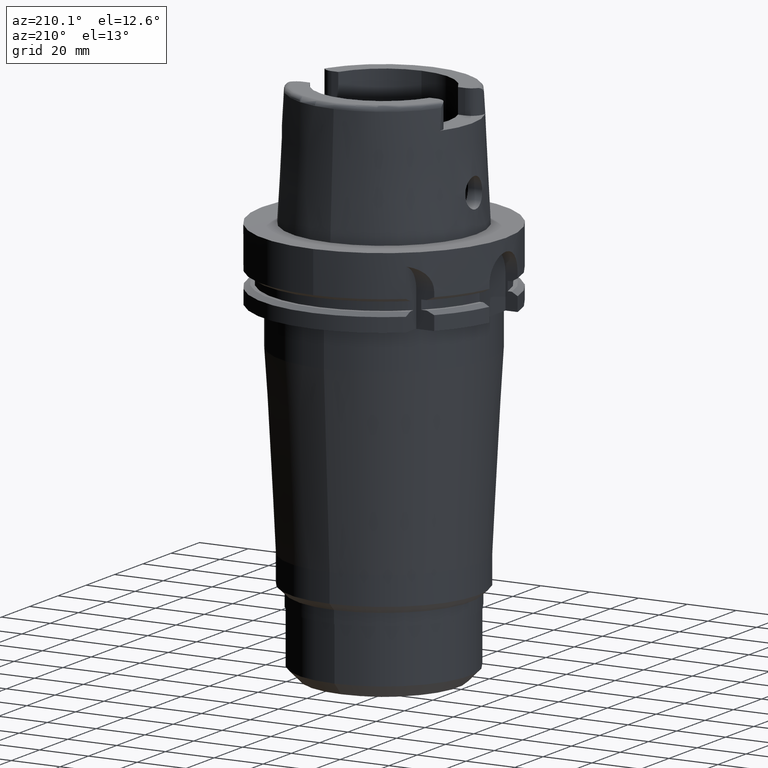
[diagram: clean part render]
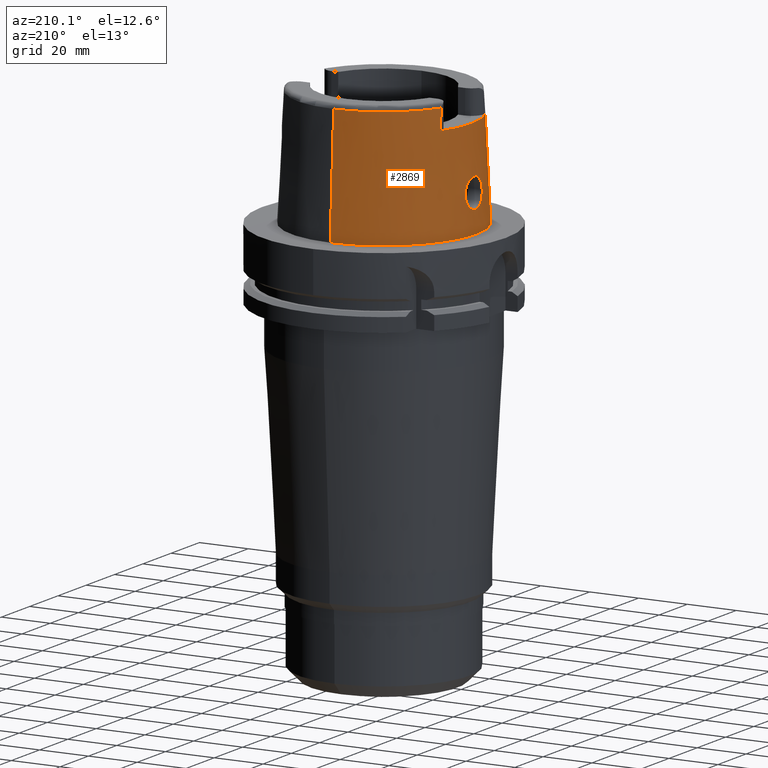
[diagram: same view with one face highlighted and labeled with its STEP entity id]
A machine part, auxiliary view. The second image highlights one B-rep face of the part: STEP entity #2869.
In plain terms, the highlighted conical surface has half-angle 2.862 deg.
Its self-contained STEP definition (entity closure, byte-faithful):
#130=CARTESIAN_POINT('',(0.E0,0.E0,4.E1));
#131=DIRECTION('',(0.E0,0.E0,-1.E0));
#132=DIRECTION('',(-8.958345712660E-1,-4.443876921391E-1,0.E0));
#133=AXIS2_PLACEMENT_3D('',#130,#131,#132);
#221=CARTESIAN_POINT('',(-3.224999491821E1,-1.506448480606E1,4.809973264154E1));
#281=CARTESIAN_POINT('',(0.E0,0.E0,4.809987853799E1));
#282=DIRECTION('',(0.E0,0.E0,-1.E0));
#283=DIRECTION('',(0.E0,-1.E0,0.E0));
#284=AXIS2_PLACEMENT_3D('',#281,#282,#283);
#289=CARTESIAN_POINT('',(-3.224999876012E1,-1.599794043148E1,4.E1));
#290=CARTESIAN_POINT('',(-3.224999876012E1,-1.589618560063E1,4.090434232027E1));
#291=CARTESIAN_POINT('',(-3.224999990104E1,-1.569149929485E1,4.271014757130E1));
#292=CARTESIAN_POINT('',(-3.225000220619E1,-1.538028254446E1,4.541006270317E1));
#293=CARTESIAN_POINT('',(-3.224999491821E1,-1.517027181547E1,4.720433969843E1));
#294=CARTESIAN_POINT('',(-3.224999491821E1,-1.506448480606E1,4.809973264154E1));
#299=DIRECTION('',(5.154182075151E-5,-4.993927430816E-2,-9.987522546783E-1));
#300=VECTOR('',#299,4.815996991514E1);
#301=CARTESIAN_POINT('',(-2.482252536761E-3,-3.559494263425E1,
4.809987853799E1));
#302=LINE('',#301,#300);
#306=CARTESIAN_POINT('',(-3.225000136841E1,1.506443228469E1,4.809991919862E1));
#307=CARTESIAN_POINT('',(-3.225000136841E1,1.517024628777E1,4.720430024104E1));
#308=CARTESIAN_POINT('',(-3.225000007421E1,1.538032523712E1,4.541024583530E1));
#309=CARTESIAN_POINT('',(-3.224999768767E1,1.569154926880E1,4.271027467023E1));
#310=CARTESIAN_POINT('',(-3.225000534596E1,1.589614940559E1,4.090439636549E1));
#311=CARTESIAN_POINT('',(-3.225000534596E1,1.599791057085E1,4.E1));
#316=CARTESIAN_POINT('',(-3.755000165825E1,1.432651546991E-13,9.E0));
#317=CARTESIAN_POINT('',(-3.755000165825E1,-5.185560787297E-1,9.E0));
#318=CARTESIAN_POINT('',(-3.752119038131E1,-1.556716984277E0,9.135734722660E0));
#319=CARTESIAN_POINT('',(-3.740130554104E1,-3.006802699928E0,9.729109611433E0));
#320=CARTESIAN_POINT('',(-3.722726318975E1,-4.270787324623E0,1.068748216955E1));
#321=CARTESIAN_POINT('',(-3.703605345601E1,-5.245410217816E0,1.194520323925E1));
#322=CARTESIAN_POINT('',(-3.686625967758E1,-5.862506743130E0,1.342477736654E1));
#323=CARTESIAN_POINT('',(-3.675188493319E1,-6.068957740843E0,1.500492021008E1));
#324=CARTESIAN_POINT('',(-3.670699294937E1,-5.861659041690E0,1.657084310323E1));
#325=CARTESIAN_POINT('',(-3.672675900459E1,-5.257535553184E0,1.802994044466E1));
#326=CARTESIAN_POINT('',(-3.679087786362E1,-4.302010649062E0,1.928009624327E1));
#327=CARTESIAN_POINT('',(-3.687048843870E1,-3.045271169490E0,2.025039439542E1));
#328=CARTESIAN_POINT('',(-3.693403423248E1,-1.575202321732E0,2.086150979571E1));
#329=CARTESIAN_POINT('',(-3.694998175923E1,-5.250091625389E-1,2.1E1));
#330=CARTESIAN_POINT('',(-3.694998175923E1,0.E0,2.1E1));
#335=CARTESIAN_POINT('',(-3.694998175923E1,0.E0,2.1E1));
#336=CARTESIAN_POINT('',(-3.694998175923E1,5.232795194754E-1,2.1E1));
#337=CARTESIAN_POINT('',(-3.693412453033E1,1.570860915333E0,2.086225710789E1));
#338=CARTESIAN_POINT('',(-3.687089197851E1,3.037978777102E0,2.025451179144E1));
#339=CARTESIAN_POINT('',(-3.679106406143E1,4.299509589152E0,1.928373303358E1));
#340=CARTESIAN_POINT('',(-3.672648539176E1,5.261375400361E0,1.802478386033E1));
#341=CARTESIAN_POINT('',(-3.670709909781E1,5.863702681450E0,1.656194075933E1));
#342=CARTESIAN_POINT('',(-3.675206984369E1,6.067618997678E0,1.500575580849E1));
#343=CARTESIAN_POINT('',(-3.686472387378E1,5.865809689032E0,1.344398412852E1));
#344=CARTESIAN_POINT('',(-3.703183517815E1,5.262900383072E0,1.197739891732E1));
#345=CARTESIAN_POINT('',(-3.722263417644E1,4.298757024079E0,1.071458147677E1));
#346=CARTESIAN_POINT('',(-3.739912191669E1,3.029436577791E0,9.739991066842E0));
#347=CARTESIAN_POINT('',(-3.752122404034E1,1.560909655761E0,9.135510008541E0));
#348=CARTESIAN_POINT('',(-3.755000165825E1,5.189906360043E-1,9.E0));
#349=CARTESIAN_POINT('',(-3.755000165825E1,1.432651546991E-13,9.E0));
#364=DIRECTION('',(-5.154182075159E-5,4.993927430816E-2,-9.987522546783E-1));
#365=VECTOR('',#364,4.815996991514E1);
#366=CARTESIAN_POINT('',(2.482252536765E-3,3.559494263425E1,4.809987853799E1));
#367=LINE('',#366,#365);
#2087=CARTESIAN_POINT('',(0.E0,0.E0,1.023181539495E-12));
#2088=DIRECTION('',(0.E0,0.E0,1.E0));
#2089=DIRECTION('',(0.E0,1.E0,0.E0));
#2090=AXIS2_PLACEMENT_3D('',#2087,#2088,#2089);
#2278=CARTESIAN_POINT('',(-3.225000136841E1,1.506443228469E1,4.809991919862E1));
#2283=CARTESIAN_POINT('',(0.E0,0.E0,4.809987853799E1));
#2284=DIRECTION('',(0.E0,0.E0,-1.E0));
#2285=DIRECTION('',(-9.060276961631E-1,4.232183996300E-1,0.E0));
#2286=AXIS2_PLACEMENT_3D('',#2283,#2284,#2285);
#2371=CARTESIAN_POINT('',(-3.224999876012E1,-1.599794043148E1,4.E1));
#2372=VERTEX_POINT('',#2371);
#2373=CARTESIAN_POINT('',(-3.224999999999E1,1.599793480981E1,4.E1));
#2374=VERTEX_POINT('',#2373);
#2376=VERTEX_POINT('',#2278);
#2377=CARTESIAN_POINT('',(0.E0,3.559494289391E1,4.809987853799E1));
#2378=VERTEX_POINT('',#2377);
#2382=VERTEX_POINT('',#221);
#2385=CARTESIAN_POINT('',(1.065814103640E-14,-3.559494289391E1,
4.809987853799E1));
#2386=VERTEX_POINT('',#2385);
#2387=CARTESIAN_POINT('',(0.E0,-3.800001658252E1,6.821210263297E-13));
#2388=VERTEX_POINT('',#2387);
#2389=CARTESIAN_POINT('',(0.E0,3.800001658252E1,1.023181539495E-12));
#2390=VERTEX_POINT('',#2389);
#2391=VERTEX_POINT('',#316);
#2392=VERTEX_POINT('',#330);
#2843=CARTESIAN_POINT('',(0.E0,0.E0,2.404993926900E1));
#2844=DIRECTION('',(0.E0,0.E0,-1.E0));
#2845=DIRECTION('',(0.E0,-1.E0,0.E0));
#2846=AXIS2_PLACEMENT_3D('',#2843,#2844,#2845);
#2847=CONICAL_SURFACE('',#2846,3.679747973821E1,2.8625E0);
#2848=ORIENTED_EDGE('',*,*,#2752,.F.);
#2849=ORIENTED_EDGE('',*,*,#2835,.T.);
#2850=ORIENTED_EDGE('',*,*,#2825,.F.);
#2852=ORIENTED_EDGE('',*,*,#2851,.T.);
#2854=ORIENTED_EDGE('',*,*,#2853,.F.);
#2856=ORIENTED_EDGE('',*,*,#2855,.F.);
#2858=ORIENTED_EDGE('',*,*,#2857,.F.);
#2860=ORIENTED_EDGE('',*,*,#2859,.T.);
#2861=EDGE_LOOP('',(#2848,#2849,#2850,#2852,#2854,#2856,#2858,#2860));
#2862=FACE_OUTER_BOUND('',#2861,.F.);
#2864=ORIENTED_EDGE('',*,*,#2863,.T.);
#2866=ORIENTED_EDGE('',*,*,#2865,.T.);
#2867=EDGE_LOOP('',(#2864,#2866));
#2868=FACE_BOUND('',#2867,.F.);
#134=CIRCLE('',#133,3.599995025244E1);
#285=CIRCLE('',#284,3.559494289391E1);
#295=B_SPLINE_CURVE_WITH_KNOTS('',3,(#289,#290,#291,#292,#293,#294),
.UNSPECIFIED.,.F.,.F.,(4,1,1,4),(0.E0,3.333333333333E-1,6.666666666667E-1,1.E0),
.UNSPECIFIED.);
#312=B_SPLINE_CURVE_WITH_KNOTS('',3,(#306,#307,#308,#309,#310,#311),
.UNSPECIFIED.,.F.,.F.,(4,1,1,4),(0.E0,3.333333333333E-1,6.666666666667E-1,1.E0),
.UNSPECIFIED.);
#331=B_SPLINE_CURVE_WITH_KNOTS('',3,(#316,#317,#318,#319,#320,#321,#322,#323,
#324,#325,#326,#327,#328,#329,#330),.UNSPECIFIED.,.F.,.F.,(4,1,1,1,1,1,1,1,1,1,
1,1,4),(0.E0,8.333333333333E-2,1.666666666667E-1,2.5E-1,3.333333333333E-1,
4.166666666667E-1,5.E-1,5.833333333333E-1,6.666666666667E-1,7.5E-1,
8.333333333333E-1,9.166666666667E-1,1.E0),.UNSPECIFIED.);
#350=B_SPLINE_CURVE_WITH_KNOTS('',3,(#335,#336,#337,#338,#339,#340,#341,#342,
#343,#344,#345,#346,#347,#348,#349),.UNSPECIFIED.,.F.,.F.,(4,1,1,1,1,1,1,1,1,1,
1,1,4),(0.E0,8.333333333333E-2,1.666666666667E-1,2.5E-1,3.333333333333E-1,
4.166666666667E-1,5.E-1,5.833333333333E-1,6.666666666667E-1,7.5E-1,
8.333333333333E-1,9.166666666667E-1,1.E0),.UNSPECIFIED.);
#2091=CIRCLE('',#2090,3.800001658252E1);
#2287=CIRCLE('',#2286,3.559494289391E1);
#2752=EDGE_CURVE('',#2372,#2374,#134,.T.);
#2825=EDGE_CURVE('',#2386,#2382,#285,.T.);
#2835=EDGE_CURVE('',#2372,#2382,#295,.T.);
#2851=EDGE_CURVE('',#2386,#2388,#302,.T.);
#2853=EDGE_CURVE('',#2390,#2388,#2091,.T.);
#2855=EDGE_CURVE('',#2378,#2390,#367,.T.);
#2857=EDGE_CURVE('',#2376,#2378,#2287,.T.);
#2859=EDGE_CURVE('',#2376,#2374,#312,.T.);
#2863=EDGE_CURVE('',#2391,#2392,#331,.T.);
#2865=EDGE_CURVE('',#2392,#2391,#350,.T.);
#2869=ADVANCED_FACE('',(#2862,#2868),#2847,.T.);